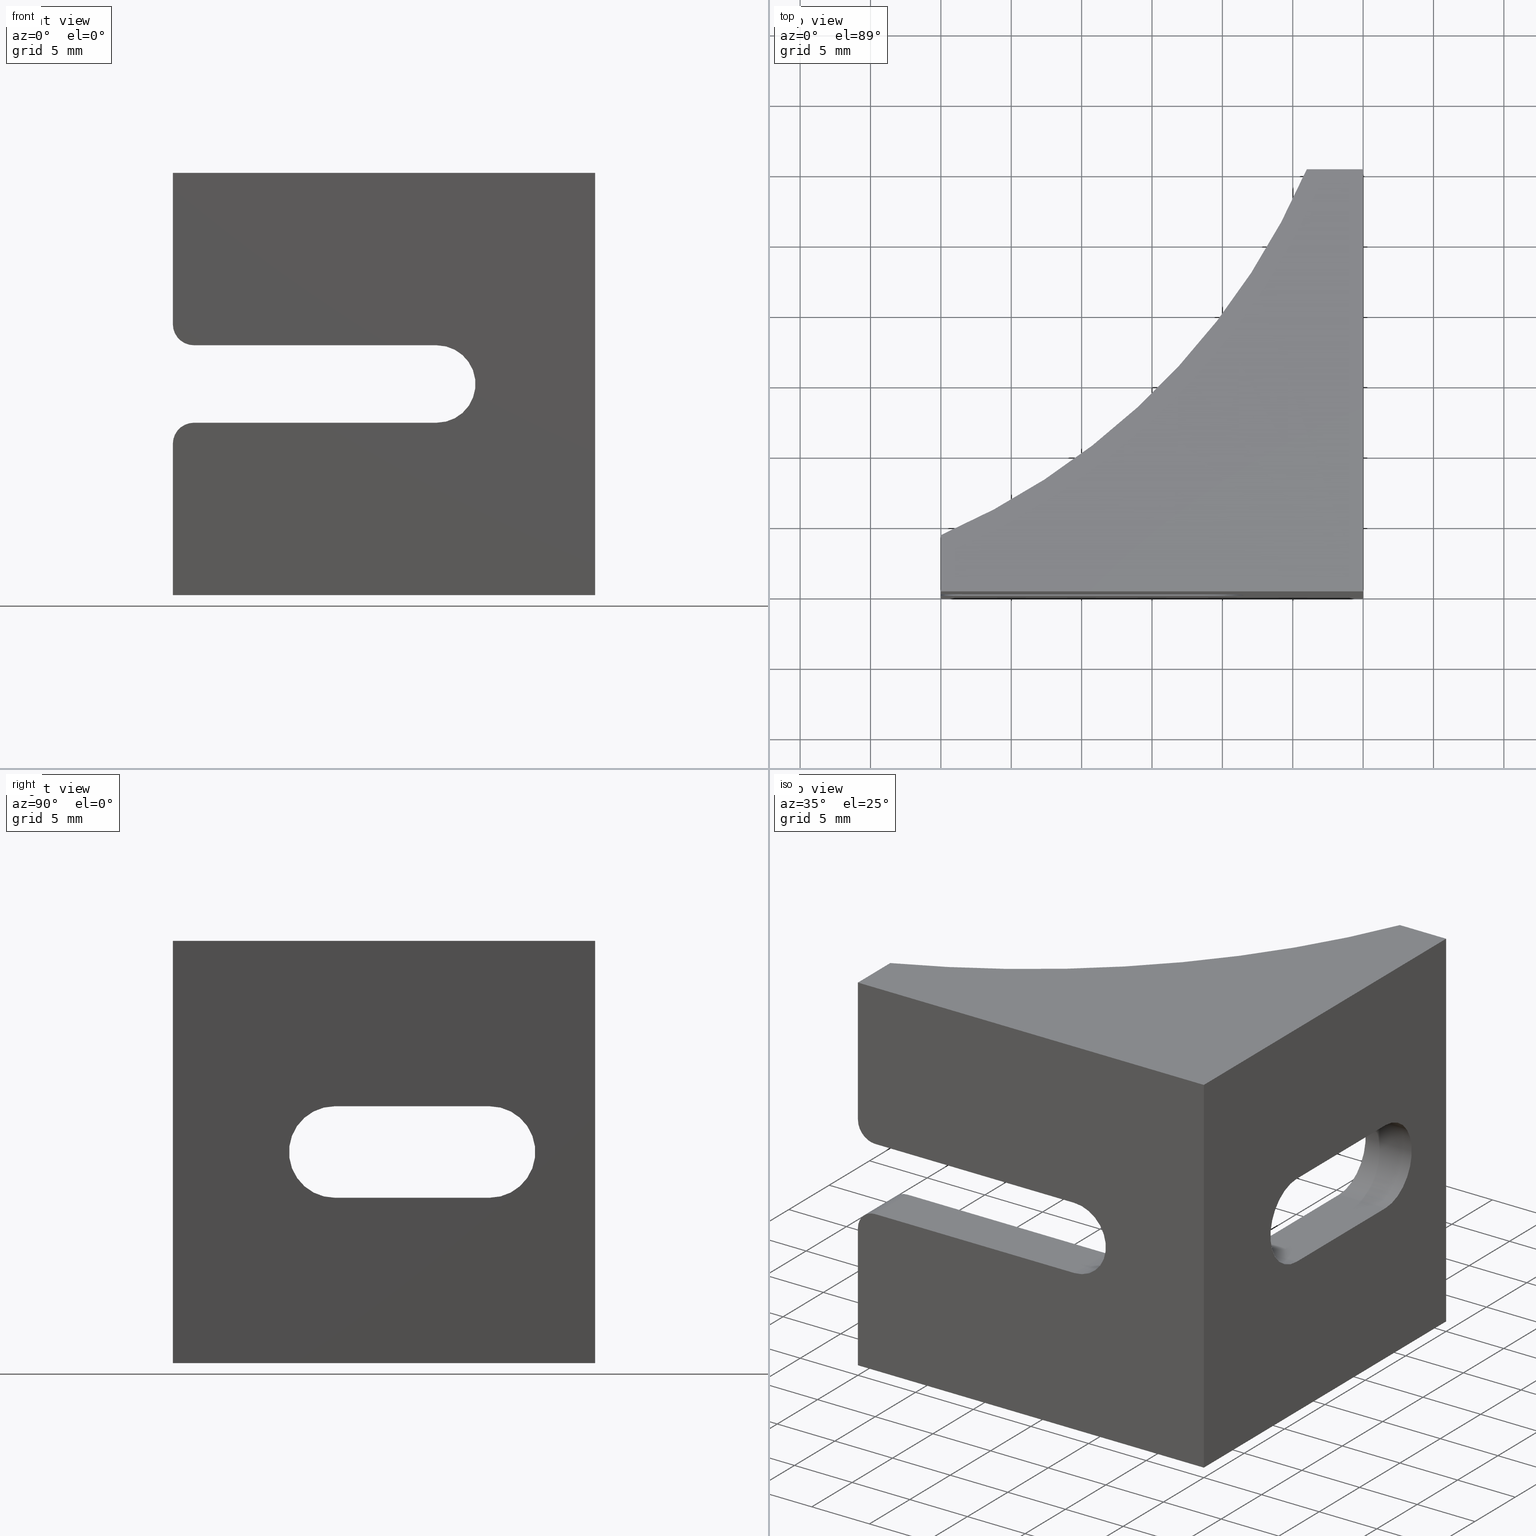
[diagram: canonical four-view strip — front | top / right | iso, engineering-drawing reading convention]
A machine part, canonical four-view strip (front | top / right | iso — engineering-drawing reading convention). The complete STEP part file that produces these views, byte-faithful:
ISO-10303-21;
HEADER;
/* Generated by software containing ST-Developer
 * from STEP Tools, Inc. (www.steptools.com) 
 */

FILE_DESCRIPTION(
/* description */ ('ANGOLARE 30X30X30 2 ASOLE'),
/* implementation_level */ '2;1');

FILE_NAME(
/* name */ 'C:\\Users\\srubbiani.DR\\Desktop\\LAURA\\27.008.00.stp',
/* time_stamp */ '2014-07-31T10:46:24+02:00',
/* author */ ('srubbiani'),
/* organization */ (''),
/* preprocessor_version */ 'ST-DEVELOPER v15.2',
/* originating_system */ 'Autodesk Inventor 2014',
/* authorisation */ '');

FILE_SCHEMA (('AUTOMOTIVE_DESIGN { 1 0 10303 214 3 1 1 }'));
ENDSEC;

DATA;
#10=MECHANICAL_DESIGN_GEOMETRIC_PRESENTATION_REPRESENTATION('',(#13),#699);
#11=SHAPE_REPRESENTATION_RELATIONSHIP('SRR','None',#708,#12);
#12=ADVANCED_BREP_SHAPE_REPRESENTATION($,(#421),#698);
#13=STYLED_ITEM('',(#717),#421);
#14=FACE_BOUND('',#67,.T.);
#15=FACE_BOUND('',#68,.T.);
#16=FACE_BOUND('',#72,.T.);
#17=FACE_BOUND('',#73,.T.);
#18=PLANE('',#426);
#19=PLANE('',#427);
#20=PLANE('',#432);
#21=PLANE('',#433);
#22=PLANE('',#436);
#23=PLANE('',#437);
#24=PLANE('',#441);
#25=PLANE('',#445);
#26=PLANE('',#447);
#27=PLANE('',#449);
#28=PLANE('',#454);
#29=PLANE('',#455);
#30=PLANE('',#456);
#31=PLANE('',#457);
#32=PLANE('',#458);
#33=FACE_OUTER_BOUND('',#53,.T.);
#34=FACE_OUTER_BOUND('',#54,.T.);
#35=FACE_OUTER_BOUND('',#55,.T.);
#36=FACE_OUTER_BOUND('',#56,.T.);
#37=FACE_OUTER_BOUND('',#57,.T.);
#38=FACE_OUTER_BOUND('',#58,.T.);
#39=FACE_OUTER_BOUND('',#59,.T.);
#40=FACE_OUTER_BOUND('',#60,.T.);
#41=FACE_OUTER_BOUND('',#61,.T.);
#42=FACE_OUTER_BOUND('',#62,.T.);
#43=FACE_OUTER_BOUND('',#63,.T.);
#44=FACE_OUTER_BOUND('',#64,.T.);
#45=FACE_OUTER_BOUND('',#65,.T.);
#46=FACE_OUTER_BOUND('',#66,.T.);
#47=FACE_OUTER_BOUND('',#69,.T.);
#48=FACE_OUTER_BOUND('',#70,.T.);
#49=FACE_OUTER_BOUND('',#71,.T.);
#50=FACE_OUTER_BOUND('',#74,.T.);
#51=FACE_OUTER_BOUND('',#75,.T.);
#52=FACE_OUTER_BOUND('',#76,.T.);
#53=EDGE_LOOP('',(#275,#276,#277,#278));
#54=EDGE_LOOP('',(#279,#280,#281,#282,#283));
#55=EDGE_LOOP('',(#284,#285,#286,#287,#288,#289,#290,#291,#292,#293));
#56=EDGE_LOOP('',(#294,#295,#296,#297));
#57=EDGE_LOOP('',(#298,#299,#300,#301,#302));
#58=EDGE_LOOP('',(#303,#304,#305,#306));
#59=EDGE_LOOP('',(#307,#308,#309,#310));
#60=EDGE_LOOP('',(#311,#312,#313,#314));
#61=EDGE_LOOP('',(#315,#316,#317,#318));
#62=EDGE_LOOP('',(#319,#320,#321,#322));
#63=EDGE_LOOP('',(#323,#324,#325,#326));
#64=EDGE_LOOP('',(#327,#328,#329,#330));
#65=EDGE_LOOP('',(#331,#332,#333,#334));
#66=EDGE_LOOP('',(#335,#336,#337,#338));
#67=EDGE_LOOP('',(#339,#340,#341,#342));
#68=EDGE_LOOP('',(#343,#344,#345,#346));
#69=EDGE_LOOP('',(#347,#348,#349,#350));
#70=EDGE_LOOP('',(#351,#352,#353,#354));
#71=EDGE_LOOP('',(#355,#356,#357,#358,#359));
#72=EDGE_LOOP('',(#360,#361,#362,#363));
#73=EDGE_LOOP('',(#364,#365,#366,#367));
#74=EDGE_LOOP('',(#368,#369,#370,#371,#372,#373,#374,#375,#376,#377));
#75=EDGE_LOOP('',(#378,#379,#380,#381,#382,#383,#384,#385));
#76=EDGE_LOOP('',(#386,#387,#388,#389,#390));
#77=LINE('',#583,#121);
#78=LINE('',#586,#122);
#79=LINE('',#589,#123);
#80=LINE('',#591,#124);
#81=LINE('',#593,#125);
#82=LINE('',#594,#126);
#83=LINE('',#597,#127);
#84=LINE('',#601,#128);
#85=LINE('',#605,#129);
#86=LINE('',#607,#130);
#87=LINE('',#609,#131);
#88=LINE('',#610,#132);
#89=LINE('',#615,#133);
#90=LINE('',#616,#134);
#91=LINE('',#619,#135);
#92=LINE('',#621,#136);
#93=LINE('',#622,#137);
#94=LINE('',#625,#138);
#95=LINE('',#626,#139);
#96=LINE('',#630,#140);
#97=LINE('',#632,#141);
#98=LINE('',#636,#142);
#99=LINE('',#638,#143);
#100=LINE('',#640,#144);
#101=LINE('',#641,#145);
#102=LINE('',#647,#146);
#103=LINE('',#650,#147);
#104=LINE('',#652,#148);
#105=LINE('',#653,#149);
#106=LINE('',#660,#150);
#107=LINE('',#661,#151);
#108=LINE('',#666,#152);
#109=LINE('',#668,#153);
#110=LINE('',#670,#154);
#111=LINE('',#673,#155);
#112=LINE('',#678,#156);
#113=LINE('',#681,#157);
#114=LINE('',#683,#158);
#115=LINE('',#684,#159);
#116=LINE('',#687,#160);
#117=LINE('',#689,#161);
#118=LINE('',#690,#162);
#119=LINE('',#692,#163);
#120=LINE('',#694,#164);
#121=VECTOR('',#465,4.00205758755086);
#122=VECTOR('',#468,4.00205758755086);
#123=VECTOR('',#471,8.75);
#124=VECTOR('',#472,2.00000000000001);
#125=VECTOR('',#473,4.00205758755086);
#126=VECTOR('',#474,10.75);
#127=VECTOR('',#477,17.25);
#128=VECTOR('',#480,17.25);
#129=VECTOR('',#483,8.75000000000001);
#130=VECTOR('',#484,26.);
#131=VECTOR('',#485,26.);
#132=VECTOR('',#486,26.);
#133=VECTOR('',#491,4.00205758755086);
#134=VECTOR('',#492,4.00205758755086);
#135=VECTOR('',#495,10.75);
#136=VECTOR('',#496,4.00205758755086);
#137=VECTOR('',#497,1.99999999999999);
#138=VECTOR('',#500,17.25);
#139=VECTOR('',#501,4.00205758755086);
#140=VECTOR('',#506,4.00205758755086);
#141=VECTOR('',#509,17.25);
#142=VECTOR('',#512,11.);
#143=VECTOR('',#513,4.);
#144=VECTOR('',#514,11.);
#145=VECTOR('',#515,4.);
#146=VECTOR('',#522,4.);
#147=VECTOR('',#525,11.);
#148=VECTOR('',#526,11.);
#149=VECTOR('',#527,4.);
#150=VECTOR('',#536,0.00205758755085661);
#151=VECTOR('',#537,25.9979424124491);
#152=VECTOR('',#542,0.00205758755085661);
#153=VECTOR('',#545,25.9979424124491);
#154=VECTOR('',#548,26.);
#155=VECTOR('',#551,2.);
#156=VECTOR('',#558,2.);
#157=VECTOR('',#561,4.00205758755086);
#158=VECTOR('',#562,30.);
#159=VECTOR('',#563,30.);
#160=VECTOR('',#566,30.);
#161=VECTOR('',#567,30.);
#162=VECTOR('',#568,30.);
#163=VECTOR('',#571,30.);
#164=VECTOR('',#574,4.00205758755086);
#165=CIRCLE('',#424,1.5);
#166=CIRCLE('',#425,1.5);
#167=CIRCLE('',#428,2.75);
#168=CIRCLE('',#429,1.5);
#169=CIRCLE('',#431,1.5);
#170=CIRCLE('',#435,2.75);
#171=CIRCLE('',#439,3.25);
#172=CIRCLE('',#440,3.25);
#173=CIRCLE('',#443,3.25);
#174=CIRCLE('',#444,3.25);
#175=CIRCLE('',#446,50.);
#176=CIRCLE('',#448,50.);
#177=CIRCLE('',#451,50.);
#178=CIRCLE('',#453,50.);
#179=VERTEX_POINT('',#579);
#180=VERTEX_POINT('',#580);
#181=VERTEX_POINT('',#582);
#182=VERTEX_POINT('',#584);
#183=VERTEX_POINT('',#588);
#184=VERTEX_POINT('',#590);
#185=VERTEX_POINT('',#592);
#186=VERTEX_POINT('',#596);
#187=VERTEX_POINT('',#598);
#188=VERTEX_POINT('',#600);
#189=VERTEX_POINT('',#602);
#190=VERTEX_POINT('',#604);
#191=VERTEX_POINT('',#606);
#192=VERTEX_POINT('',#608);
#193=VERTEX_POINT('',#612);
#194=VERTEX_POINT('',#613);
#195=VERTEX_POINT('',#618);
#196=VERTEX_POINT('',#620);
#197=VERTEX_POINT('',#624);
#198=VERTEX_POINT('',#628);
#199=VERTEX_POINT('',#634);
#200=VERTEX_POINT('',#635);
#201=VERTEX_POINT('',#637);
#202=VERTEX_POINT('',#639);
#203=VERTEX_POINT('',#643);
#204=VERTEX_POINT('',#645);
#205=VERTEX_POINT('',#649);
#206=VERTEX_POINT('',#651);
#207=VERTEX_POINT('',#658);
#208=VERTEX_POINT('',#659);
#209=VERTEX_POINT('',#664);
#210=VERTEX_POINT('',#665);
#211=VERTEX_POINT('',#672);
#212=VERTEX_POINT('',#676);
#213=VERTEX_POINT('',#680);
#214=VERTEX_POINT('',#682);
#215=VERTEX_POINT('',#686);
#216=VERTEX_POINT('',#688);
#217=EDGE_CURVE('',#179,#180,#165,.T.);
#218=EDGE_CURVE('',#180,#181,#77,.T.);
#219=EDGE_CURVE('',#181,#182,#166,.T.);
#220=EDGE_CURVE('',#182,#179,#78,.T.);
#221=EDGE_CURVE('',#180,#183,#79,.T.);
#222=EDGE_CURVE('',#183,#184,#80,.T.);
#223=EDGE_CURVE('',#185,#184,#81,.T.);
#224=EDGE_CURVE('',#185,#181,#82,.T.);
#225=EDGE_CURVE('',#179,#186,#83,.T.);
#226=EDGE_CURVE('',#186,#187,#167,.T.);
#227=EDGE_CURVE('',#187,#188,#84,.T.);
#228=EDGE_CURVE('',#189,#188,#168,.T.);
#229=EDGE_CURVE('',#190,#189,#85,.T.);
#230=EDGE_CURVE('',#190,#191,#86,.T.);
#231=EDGE_CURVE('',#191,#192,#87,.T.);
#232=EDGE_CURVE('',#183,#192,#88,.T.);
#233=EDGE_CURVE('',#193,#194,#169,.T.);
#234=EDGE_CURVE('',#194,#189,#89,.T.);
#235=EDGE_CURVE('',#188,#193,#90,.T.);
#236=EDGE_CURVE('',#194,#195,#91,.T.);
#237=EDGE_CURVE('',#196,#195,#92,.T.);
#238=EDGE_CURVE('',#196,#190,#93,.T.);
#239=EDGE_CURVE('',#197,#182,#94,.T.);
#240=EDGE_CURVE('',#197,#186,#95,.T.);
#241=EDGE_CURVE('',#198,#197,#170,.T.);
#242=EDGE_CURVE('',#198,#187,#96,.T.);
#243=EDGE_CURVE('',#193,#198,#97,.T.);
#244=EDGE_CURVE('',#199,#200,#98,.T.);
#245=EDGE_CURVE('',#201,#199,#99,.T.);
#246=EDGE_CURVE('',#202,#201,#100,.T.);
#247=EDGE_CURVE('',#202,#200,#101,.T.);
#248=EDGE_CURVE('',#200,#203,#171,.T.);
#249=EDGE_CURVE('',#204,#202,#172,.T.);
#250=EDGE_CURVE('',#204,#203,#102,.T.);
#251=EDGE_CURVE('',#203,#205,#103,.T.);
#252=EDGE_CURVE('',#206,#204,#104,.T.);
#253=EDGE_CURVE('',#206,#205,#105,.T.);
#254=EDGE_CURVE('',#205,#199,#173,.T.);
#255=EDGE_CURVE('',#201,#206,#174,.T.);
#256=EDGE_CURVE('',#207,#208,#106,.T.);
#257=EDGE_CURVE('',#207,#191,#107,.T.);
#258=EDGE_CURVE('',#208,#190,#175,.T.);
#259=EDGE_CURVE('',#209,#210,#108,.T.);
#260=EDGE_CURVE('',#183,#209,#176,.T.);
#261=EDGE_CURVE('',#192,#210,#109,.T.);
#262=EDGE_CURVE('',#210,#207,#110,.T.);
#263=EDGE_CURVE('',#211,#209,#111,.T.);
#264=EDGE_CURVE('',#184,#211,#177,.T.);
#265=EDGE_CURVE('',#212,#196,#178,.T.);
#266=EDGE_CURVE('',#208,#212,#112,.T.);
#267=EDGE_CURVE('',#211,#213,#113,.T.);
#268=EDGE_CURVE('',#213,#214,#114,.T.);
#269=EDGE_CURVE('',#214,#185,#115,.T.);
#270=EDGE_CURVE('',#213,#215,#116,.T.);
#271=EDGE_CURVE('',#216,#215,#117,.T.);
#272=EDGE_CURVE('',#214,#216,#118,.T.);
#273=EDGE_CURVE('',#195,#216,#119,.T.);
#274=EDGE_CURVE('',#215,#212,#120,.T.);
#275=ORIENTED_EDGE('',*,*,#217,.T.);
#276=ORIENTED_EDGE('',*,*,#218,.T.);
#277=ORIENTED_EDGE('',*,*,#219,.T.);
#278=ORIENTED_EDGE('',*,*,#220,.T.);
#279=ORIENTED_EDGE('',*,*,#218,.F.);
#280=ORIENTED_EDGE('',*,*,#221,.T.);
#281=ORIENTED_EDGE('',*,*,#222,.T.);
#282=ORIENTED_EDGE('',*,*,#223,.F.);
#283=ORIENTED_EDGE('',*,*,#224,.T.);
#284=ORIENTED_EDGE('',*,*,#217,.F.);
#285=ORIENTED_EDGE('',*,*,#225,.T.);
#286=ORIENTED_EDGE('',*,*,#226,.T.);
#287=ORIENTED_EDGE('',*,*,#227,.T.);
#288=ORIENTED_EDGE('',*,*,#228,.F.);
#289=ORIENTED_EDGE('',*,*,#229,.F.);
#290=ORIENTED_EDGE('',*,*,#230,.T.);
#291=ORIENTED_EDGE('',*,*,#231,.T.);
#292=ORIENTED_EDGE('',*,*,#232,.F.);
#293=ORIENTED_EDGE('',*,*,#221,.F.);
#294=ORIENTED_EDGE('',*,*,#233,.T.);
#295=ORIENTED_EDGE('',*,*,#234,.T.);
#296=ORIENTED_EDGE('',*,*,#228,.T.);
#297=ORIENTED_EDGE('',*,*,#235,.T.);
#298=ORIENTED_EDGE('',*,*,#234,.F.);
#299=ORIENTED_EDGE('',*,*,#236,.T.);
#300=ORIENTED_EDGE('',*,*,#237,.F.);
#301=ORIENTED_EDGE('',*,*,#238,.T.);
#302=ORIENTED_EDGE('',*,*,#229,.T.);
#303=ORIENTED_EDGE('',*,*,#220,.F.);
#304=ORIENTED_EDGE('',*,*,#239,.F.);
#305=ORIENTED_EDGE('',*,*,#240,.T.);
#306=ORIENTED_EDGE('',*,*,#225,.F.);
#307=ORIENTED_EDGE('',*,*,#226,.F.);
#308=ORIENTED_EDGE('',*,*,#240,.F.);
#309=ORIENTED_EDGE('',*,*,#241,.F.);
#310=ORIENTED_EDGE('',*,*,#242,.T.);
#311=ORIENTED_EDGE('',*,*,#235,.F.);
#312=ORIENTED_EDGE('',*,*,#227,.F.);
#313=ORIENTED_EDGE('',*,*,#242,.F.);
#314=ORIENTED_EDGE('',*,*,#243,.F.);
#315=ORIENTED_EDGE('',*,*,#244,.F.);
#316=ORIENTED_EDGE('',*,*,#245,.F.);
#317=ORIENTED_EDGE('',*,*,#246,.F.);
#318=ORIENTED_EDGE('',*,*,#247,.T.);
#319=ORIENTED_EDGE('',*,*,#248,.F.);
#320=ORIENTED_EDGE('',*,*,#247,.F.);
#321=ORIENTED_EDGE('',*,*,#249,.F.);
#322=ORIENTED_EDGE('',*,*,#250,.T.);
#323=ORIENTED_EDGE('',*,*,#251,.F.);
#324=ORIENTED_EDGE('',*,*,#250,.F.);
#325=ORIENTED_EDGE('',*,*,#252,.F.);
#326=ORIENTED_EDGE('',*,*,#253,.T.);
#327=ORIENTED_EDGE('',*,*,#254,.F.);
#328=ORIENTED_EDGE('',*,*,#253,.F.);
#329=ORIENTED_EDGE('',*,*,#255,.F.);
#330=ORIENTED_EDGE('',*,*,#245,.T.);
#331=ORIENTED_EDGE('',*,*,#256,.F.);
#332=ORIENTED_EDGE('',*,*,#257,.T.);
#333=ORIENTED_EDGE('',*,*,#230,.F.);
#334=ORIENTED_EDGE('',*,*,#258,.F.);
#335=ORIENTED_EDGE('',*,*,#259,.F.);
#336=ORIENTED_EDGE('',*,*,#260,.F.);
#337=ORIENTED_EDGE('',*,*,#232,.T.);
#338=ORIENTED_EDGE('',*,*,#261,.T.);
#339=ORIENTED_EDGE('',*,*,#251,.T.);
#340=ORIENTED_EDGE('',*,*,#254,.T.);
#341=ORIENTED_EDGE('',*,*,#244,.T.);
#342=ORIENTED_EDGE('',*,*,#248,.T.);
#343=ORIENTED_EDGE('',*,*,#262,.F.);
#344=ORIENTED_EDGE('',*,*,#261,.F.);
#345=ORIENTED_EDGE('',*,*,#231,.F.);
#346=ORIENTED_EDGE('',*,*,#257,.F.);
#347=ORIENTED_EDGE('',*,*,#260,.T.);
#348=ORIENTED_EDGE('',*,*,#263,.F.);
#349=ORIENTED_EDGE('',*,*,#264,.F.);
#350=ORIENTED_EDGE('',*,*,#222,.F.);
#351=ORIENTED_EDGE('',*,*,#258,.T.);
#352=ORIENTED_EDGE('',*,*,#238,.F.);
#353=ORIENTED_EDGE('',*,*,#265,.F.);
#354=ORIENTED_EDGE('',*,*,#266,.F.);
#355=ORIENTED_EDGE('',*,*,#264,.T.);
#356=ORIENTED_EDGE('',*,*,#267,.T.);
#357=ORIENTED_EDGE('',*,*,#268,.T.);
#358=ORIENTED_EDGE('',*,*,#269,.T.);
#359=ORIENTED_EDGE('',*,*,#223,.T.);
#360=ORIENTED_EDGE('',*,*,#252,.T.);
#361=ORIENTED_EDGE('',*,*,#249,.T.);
#362=ORIENTED_EDGE('',*,*,#246,.T.);
#363=ORIENTED_EDGE('',*,*,#255,.T.);
#364=ORIENTED_EDGE('',*,*,#268,.F.);
#365=ORIENTED_EDGE('',*,*,#270,.T.);
#366=ORIENTED_EDGE('',*,*,#271,.F.);
#367=ORIENTED_EDGE('',*,*,#272,.F.);
#368=ORIENTED_EDGE('',*,*,#219,.F.);
#369=ORIENTED_EDGE('',*,*,#224,.F.);
#370=ORIENTED_EDGE('',*,*,#269,.F.);
#371=ORIENTED_EDGE('',*,*,#272,.T.);
#372=ORIENTED_EDGE('',*,*,#273,.F.);
#373=ORIENTED_EDGE('',*,*,#236,.F.);
#374=ORIENTED_EDGE('',*,*,#233,.F.);
#375=ORIENTED_EDGE('',*,*,#243,.T.);
#376=ORIENTED_EDGE('',*,*,#241,.T.);
#377=ORIENTED_EDGE('',*,*,#239,.T.);
#378=ORIENTED_EDGE('',*,*,#256,.T.);
#379=ORIENTED_EDGE('',*,*,#266,.T.);
#380=ORIENTED_EDGE('',*,*,#274,.F.);
#381=ORIENTED_EDGE('',*,*,#270,.F.);
#382=ORIENTED_EDGE('',*,*,#267,.F.);
#383=ORIENTED_EDGE('',*,*,#263,.T.);
#384=ORIENTED_EDGE('',*,*,#259,.T.);
#385=ORIENTED_EDGE('',*,*,#262,.T.);
#386=ORIENTED_EDGE('',*,*,#265,.T.);
#387=ORIENTED_EDGE('',*,*,#237,.T.);
#388=ORIENTED_EDGE('',*,*,#273,.T.);
#389=ORIENTED_EDGE('',*,*,#271,.T.);
#390=ORIENTED_EDGE('',*,*,#274,.T.);
#391=CYLINDRICAL_SURFACE('',#423,1.5);
#392=CYLINDRICAL_SURFACE('',#430,1.5);
#393=CYLINDRICAL_SURFACE('',#434,2.75);
#394=CYLINDRICAL_SURFACE('',#438,3.25);
#395=CYLINDRICAL_SURFACE('',#442,3.25);
#396=CYLINDRICAL_SURFACE('',#450,50.);
#397=CYLINDRICAL_SURFACE('',#452,50.);
#398=ADVANCED_FACE('',(#33),#391,.T.);
#399=ADVANCED_FACE('',(#34),#18,.T.);
#400=ADVANCED_FACE('',(#35),#19,.F.);
#401=ADVANCED_FACE('',(#36),#392,.T.);
#402=ADVANCED_FACE('',(#37),#20,.T.);
#403=ADVANCED_FACE('',(#38),#21,.F.);
#404=ADVANCED_FACE('',(#39),#393,.F.);
#405=ADVANCED_FACE('',(#40),#22,.F.);
#406=ADVANCED_FACE('',(#41),#23,.F.);
#407=ADVANCED_FACE('',(#42),#394,.F.);
#408=ADVANCED_FACE('',(#43),#24,.F.);
#409=ADVANCED_FACE('',(#44),#395,.F.);
#410=ADVANCED_FACE('',(#45),#25,.F.);
#411=ADVANCED_FACE('',(#46),#26,.F.);
#412=ADVANCED_FACE('',(#14,#15),#27,.F.);
#413=ADVANCED_FACE('',(#47),#396,.F.);
#414=ADVANCED_FACE('',(#48),#397,.F.);
#415=ADVANCED_FACE('',(#49),#28,.F.);
#416=ADVANCED_FACE('',(#16,#17),#29,.T.);
#417=ADVANCED_FACE('',(#50),#30,.T.);
#418=ADVANCED_FACE('',(#51),#31,.T.);
#419=ADVANCED_FACE('',(#52),#32,.T.);
#420=CLOSED_SHELL('',(#398,#399,#400,#401,#402,#403,#404,#405,#406,#407,
#408,#409,#410,#411,#412,#413,#414,#415,#416,#417,#418,#419));
#421=MANIFOLD_SOLID_BREP('Solido1',#420);
#422=AXIS2_PLACEMENT_3D('placement',#577,#459,#460);
#423=AXIS2_PLACEMENT_3D('',#578,#461,#462);
#424=AXIS2_PLACEMENT_3D('',#581,#463,#464);
#425=AXIS2_PLACEMENT_3D('',#585,#466,#467);
#426=AXIS2_PLACEMENT_3D('',#587,#469,#470);
#427=AXIS2_PLACEMENT_3D('',#595,#475,#476);
#428=AXIS2_PLACEMENT_3D('',#599,#478,#479);
#429=AXIS2_PLACEMENT_3D('',#603,#481,#482);
#430=AXIS2_PLACEMENT_3D('',#611,#487,#488);
#431=AXIS2_PLACEMENT_3D('',#614,#489,#490);
#432=AXIS2_PLACEMENT_3D('',#617,#493,#494);
#433=AXIS2_PLACEMENT_3D('',#623,#498,#499);
#434=AXIS2_PLACEMENT_3D('',#627,#502,#503);
#435=AXIS2_PLACEMENT_3D('',#629,#504,#505);
#436=AXIS2_PLACEMENT_3D('',#631,#507,#508);
#437=AXIS2_PLACEMENT_3D('',#633,#510,#511);
#438=AXIS2_PLACEMENT_3D('',#642,#516,#517);
#439=AXIS2_PLACEMENT_3D('',#644,#518,#519);
#440=AXIS2_PLACEMENT_3D('',#646,#520,#521);
#441=AXIS2_PLACEMENT_3D('',#648,#523,#524);
#442=AXIS2_PLACEMENT_3D('',#654,#528,#529);
#443=AXIS2_PLACEMENT_3D('',#655,#530,#531);
#444=AXIS2_PLACEMENT_3D('',#656,#532,#533);
#445=AXIS2_PLACEMENT_3D('',#657,#534,#535);
#446=AXIS2_PLACEMENT_3D('',#662,#538,#539);
#447=AXIS2_PLACEMENT_3D('',#663,#540,#541);
#448=AXIS2_PLACEMENT_3D('',#667,#543,#544);
#449=AXIS2_PLACEMENT_3D('',#669,#546,#547);
#450=AXIS2_PLACEMENT_3D('',#671,#549,#550);
#451=AXIS2_PLACEMENT_3D('',#674,#552,#553);
#452=AXIS2_PLACEMENT_3D('',#675,#554,#555);
#453=AXIS2_PLACEMENT_3D('',#677,#556,#557);
#454=AXIS2_PLACEMENT_3D('',#679,#559,#560);
#455=AXIS2_PLACEMENT_3D('',#685,#564,#565);
#456=AXIS2_PLACEMENT_3D('',#691,#569,#570);
#457=AXIS2_PLACEMENT_3D('',#693,#572,#573);
#458=AXIS2_PLACEMENT_3D('',#695,#575,#576);
#459=DIRECTION('axis',(0.,0.,1.));
#460=DIRECTION('refdir',(1.,0.,0.));
#461=DIRECTION('center_axis',(0.,1.,0.));
#462=DIRECTION('ref_axis',(-0.707106781186547,0.,0.707106781186547));
#463=DIRECTION('center_axis',(0.,-1.,0.));
#464=DIRECTION('ref_axis',(-0.707106781186547,0.,0.707106781186547));
#465=DIRECTION('',(0.,-1.,0.));
#466=DIRECTION('center_axis',(0.,1.,0.));
#467=DIRECTION('ref_axis',(-0.707106781186547,0.,0.707106781186547));
#468=DIRECTION('',(0.,1.,0.));
#469=DIRECTION('center_axis',(-1.,0.,0.));
#470=DIRECTION('ref_axis',(0.,-1.,0.));
#471=DIRECTION('',(0.,0.,-1.));
#472=DIRECTION('',(0.,0.,-1.));
#473=DIRECTION('',(0.,1.,0.));
#474=DIRECTION('',(0.,0.,1.));
#475=DIRECTION('center_axis',(0.,-1.,0.));
#476=DIRECTION('ref_axis',(0.,0.,-1.));
#477=DIRECTION('',(1.,0.,0.));
#478=DIRECTION('center_axis',(0.,-1.,0.));
#479=DIRECTION('ref_axis',(0.,0.,-1.));
#480=DIRECTION('',(-1.,0.,0.));
#481=DIRECTION('center_axis',(0.,-1.,0.));
#482=DIRECTION('ref_axis',(-0.707106781186547,0.,-0.707106781186547));
#483=DIRECTION('',(0.,0.,-1.));
#484=DIRECTION('',(1.,0.,0.));
#485=DIRECTION('',(0.,0.,-1.));
#486=DIRECTION('',(1.,0.,0.));
#487=DIRECTION('center_axis',(0.,-1.,0.));
#488=DIRECTION('ref_axis',(-0.707106781186547,0.,-0.707106781186547));
#489=DIRECTION('center_axis',(0.,1.,0.));
#490=DIRECTION('ref_axis',(-0.707106781186547,0.,-0.707106781186547));
#491=DIRECTION('',(0.,1.,0.));
#492=DIRECTION('',(0.,-1.,0.));
#493=DIRECTION('center_axis',(-1.,0.,0.));
#494=DIRECTION('ref_axis',(0.,-1.,0.));
#495=DIRECTION('',(0.,0.,1.));
#496=DIRECTION('',(0.,-1.,0.));
#497=DIRECTION('',(0.,0.,-1.));
#498=DIRECTION('center_axis',(0.,0.,-1.));
#499=DIRECTION('ref_axis',(-1.,0.,0.));
#500=DIRECTION('',(-1.,0.,0.));
#501=DIRECTION('',(0.,1.,0.));
#502=DIRECTION('center_axis',(0.,1.,0.));
#503=DIRECTION('ref_axis',(0.,0.,-1.));
#504=DIRECTION('center_axis',(0.,1.,0.));
#505=DIRECTION('ref_axis',(0.,0.,-1.));
#506=DIRECTION('',(0.,1.,0.));
#507=DIRECTION('center_axis',(0.,0.,1.));
#508=DIRECTION('ref_axis',(1.,0.,0.));
#509=DIRECTION('',(1.,0.,0.));
#510=DIRECTION('center_axis',(0.,2.01858731750028E-016,1.));
#511=DIRECTION('ref_axis',(0.,1.,-3.5527136788005E-016));
#512=DIRECTION('',(0.,-1.,2.01858731750028E-016));
#513=DIRECTION('',(-1.,0.,0.));
#514=DIRECTION('',(0.,1.,-2.01858731750028E-016));
#515=DIRECTION('',(-1.,0.,0.));
#516=DIRECTION('center_axis',(-1.,0.,0.));
#517=DIRECTION('ref_axis',(0.,0.,1.));
#518=DIRECTION('center_axis',(1.,0.,0.));
#519=DIRECTION('ref_axis',(0.,0.,1.));
#520=DIRECTION('center_axis',(-1.,0.,0.));
#521=DIRECTION('ref_axis',(0.,0.,1.));
#522=DIRECTION('',(-1.,0.,0.));
#523=DIRECTION('center_axis',(0.,0.,-1.));
#524=DIRECTION('ref_axis',(0.,-1.,0.));
#525=DIRECTION('',(0.,1.,0.));
#526=DIRECTION('',(0.,-1.,0.));
#527=DIRECTION('',(-1.,0.,0.));
#528=DIRECTION('center_axis',(-1.,0.,0.));
#529=DIRECTION('ref_axis',(0.,0.,-1.));
#530=DIRECTION('center_axis',(1.,0.,0.));
#531=DIRECTION('ref_axis',(0.,0.,-1.));
#532=DIRECTION('center_axis',(-1.,0.,0.));
#533=DIRECTION('ref_axis',(0.,0.,-1.));
#534=DIRECTION('center_axis',(0.,3.41607084500048E-016,1.));
#535=DIRECTION('ref_axis',(0.,-1.,3.5527136788005E-016));
#536=DIRECTION('',(-1.,0.,0.));
#537=DIRECTION('',(0.,-1.,3.41607084500048E-016));
#538=DIRECTION('center_axis',(0.,-3.41607084500048E-016,-1.));
#539=DIRECTION('ref_axis',(-1.,0.,0.));
#540=DIRECTION('center_axis',(0.,-4.2700885562506E-016,-1.));
#541=DIRECTION('ref_axis',(0.,1.,-4.44089209850063E-016));
#542=DIRECTION('',(1.,0.,0.));
#543=DIRECTION('center_axis',(0.,4.2700885562506E-016,1.));
#544=DIRECTION('ref_axis',(-1.,0.,0.));
#545=DIRECTION('',(0.,1.,-4.2700885562506E-016));
#546=DIRECTION('center_axis',(1.,0.,0.));
#547=DIRECTION('ref_axis',(0.,0.,-1.));
#548=DIRECTION('',(0.,0.,1.));
#549=DIRECTION('center_axis',(0.,0.,-1.));
#550=DIRECTION('ref_axis',(-1.,0.,0.));
#551=DIRECTION('',(0.,0.,1.));
#552=DIRECTION('center_axis',(0.,0.,1.));
#553=DIRECTION('ref_axis',(-1.,0.,0.));
#554=DIRECTION('center_axis',(0.,0.,-1.));
#555=DIRECTION('ref_axis',(-1.,0.,0.));
#556=DIRECTION('center_axis',(0.,0.,-1.));
#557=DIRECTION('ref_axis',(-1.,0.,0.));
#558=DIRECTION('',(0.,0.,1.));
#559=DIRECTION('center_axis',(0.,0.,1.));
#560=DIRECTION('ref_axis',(1.,0.,0.));
#561=DIRECTION('',(1.,0.,0.));
#562=DIRECTION('',(0.,-1.,0.));
#563=DIRECTION('',(-1.,0.,0.));
#564=DIRECTION('center_axis',(1.,0.,0.));
#565=DIRECTION('ref_axis',(0.,1.,0.));
#566=DIRECTION('',(0.,0.,1.));
#567=DIRECTION('',(0.,1.,0.));
#568=DIRECTION('',(0.,0.,1.));
#569=DIRECTION('center_axis',(0.,-1.,0.));
#570=DIRECTION('ref_axis',(1.,0.,0.));
#571=DIRECTION('',(1.,0.,0.));
#572=DIRECTION('center_axis',(0.,1.,0.));
#573=DIRECTION('ref_axis',(-1.,0.,0.));
#574=DIRECTION('',(-1.,0.,0.));
#575=DIRECTION('center_axis',(0.,0.,1.));
#576=DIRECTION('ref_axis',(1.,0.,0.));
#577=CARTESIAN_POINT('',(0.,0.,0.));
#578=CARTESIAN_POINT('Origin',(-13.5,0.,10.75));
#579=CARTESIAN_POINT('',(-13.5,-10.9979424124491,12.25));
#580=CARTESIAN_POINT('',(-15.,-10.9979424124491,10.75));
#581=CARTESIAN_POINT('Origin',(-13.5,-10.9979424124491,10.75));
#582=CARTESIAN_POINT('',(-15.,-15.,10.75));
#583=CARTESIAN_POINT('',(-15.,0.,10.75));
#584=CARTESIAN_POINT('',(-13.5,-15.,12.25));
#585=CARTESIAN_POINT('Origin',(-13.5,-15.,10.75));
#586=CARTESIAN_POINT('',(-13.5,0.,12.25));
#587=CARTESIAN_POINT('Origin',(-15.,15.,0.));
#588=CARTESIAN_POINT('',(-15.,-10.9979424124491,2.00000000000001));
#589=CARTESIAN_POINT('',(-15.,-10.9979424124491,30.));
#590=CARTESIAN_POINT('',(-15.,-10.9979424124491,0.));
#591=CARTESIAN_POINT('',(-15.,-10.9979424124491,30.));
#592=CARTESIAN_POINT('',(-15.,-15.,0.));
#593=CARTESIAN_POINT('',(-15.,-15.,0.));
#594=CARTESIAN_POINT('',(-15.,-15.,0.));
#595=CARTESIAN_POINT('Origin',(-15.,-10.9979424124491,28.));
#596=CARTESIAN_POINT('',(3.75,-10.9979424124491,12.25));
#597=CARTESIAN_POINT('',(-5.625,-10.9979424124491,12.25));
#598=CARTESIAN_POINT('',(3.75,-10.9979424124491,17.75));
#599=CARTESIAN_POINT('Origin',(3.75,-10.9979424124491,15.));
#600=CARTESIAN_POINT('',(-13.5,-10.9979424124491,17.75));
#601=CARTESIAN_POINT('',(-15.,-10.9979424124491,17.75));
#602=CARTESIAN_POINT('',(-15.,-10.9979424124491,19.25));
#603=CARTESIAN_POINT('Origin',(-13.5,-10.9979424124491,19.25));
#604=CARTESIAN_POINT('',(-15.,-10.9979424124491,28.));
#605=CARTESIAN_POINT('',(-15.,-10.9979424124491,30.));
#606=CARTESIAN_POINT('',(11.,-10.9979424124491,28.));
#607=CARTESIAN_POINT('',(-15.,-10.9979424124491,28.));
#608=CARTESIAN_POINT('',(11.,-10.9979424124491,2.00000000000001));
#609=CARTESIAN_POINT('',(11.,-10.9979424124491,2.00000000000001));
#610=CARTESIAN_POINT('',(-15.,-10.9979424124491,2.00000000000001));
#611=CARTESIAN_POINT('Origin',(-13.5,0.,19.25));
#612=CARTESIAN_POINT('',(-13.5,-15.,17.75));
#613=CARTESIAN_POINT('',(-15.,-15.,19.25));
#614=CARTESIAN_POINT('Origin',(-13.5,-15.,19.25));
#615=CARTESIAN_POINT('',(-15.,0.,19.25));
#616=CARTESIAN_POINT('',(-13.5,0.,17.75));
#617=CARTESIAN_POINT('Origin',(-15.,15.,0.));
#618=CARTESIAN_POINT('',(-15.,-15.,30.));
#619=CARTESIAN_POINT('',(-15.,-15.,0.));
#620=CARTESIAN_POINT('',(-15.,-10.9979424124491,30.));
#621=CARTESIAN_POINT('',(-15.,-15.,30.));
#622=CARTESIAN_POINT('',(-15.,-10.9979424124491,30.));
#623=CARTESIAN_POINT('Origin',(3.75,-15.,12.25));
#624=CARTESIAN_POINT('',(3.75,-15.,12.25));
#625=CARTESIAN_POINT('',(-5.625,-15.,12.25));
#626=CARTESIAN_POINT('',(3.75,-15.,12.25));
#627=CARTESIAN_POINT('Origin',(3.75,-15.,15.));
#628=CARTESIAN_POINT('',(3.75,-15.,17.75));
#629=CARTESIAN_POINT('Origin',(3.75,-15.,15.));
#630=CARTESIAN_POINT('',(3.75,-15.,17.75));
#631=CARTESIAN_POINT('Origin',(-15.,-15.,17.75));
#632=CARTESIAN_POINT('',(-15.,-15.,17.75));
#633=CARTESIAN_POINT('Origin',(15.,-3.5,18.25));
#634=CARTESIAN_POINT('',(11.,7.5,18.25));
#635=CARTESIAN_POINT('',(11.,-3.5,18.25));
#636=CARTESIAN_POINT('',(11.,-0.74897120622457,18.25));
#637=CARTESIAN_POINT('',(15.,7.5,18.25));
#638=CARTESIAN_POINT('',(15.,7.5,18.25));
#639=CARTESIAN_POINT('',(15.,-3.5,18.25));
#640=CARTESIAN_POINT('',(15.,-9.25,18.25));
#641=CARTESIAN_POINT('',(15.,-3.5,18.25));
#642=CARTESIAN_POINT('Origin',(15.,-3.5,15.));
#643=CARTESIAN_POINT('',(11.,-3.5,11.75));
#644=CARTESIAN_POINT('Origin',(11.,-3.5,15.));
#645=CARTESIAN_POINT('',(15.,-3.5,11.75));
#646=CARTESIAN_POINT('Origin',(15.,-3.5,15.));
#647=CARTESIAN_POINT('',(15.,-3.5,11.75));
#648=CARTESIAN_POINT('Origin',(15.,7.5,11.75));
#649=CARTESIAN_POINT('',(11.,7.5,11.75));
#650=CARTESIAN_POINT('',(11.,4.75102879377543,11.75));
#651=CARTESIAN_POINT('',(15.,7.5,11.75));
#652=CARTESIAN_POINT('',(15.,-3.75,11.75));
#653=CARTESIAN_POINT('',(15.,7.5,11.75));
#654=CARTESIAN_POINT('Origin',(15.,7.5,15.));
#655=CARTESIAN_POINT('Origin',(11.,7.5,15.));
#656=CARTESIAN_POINT('Origin',(15.,7.5,15.));
#657=CARTESIAN_POINT('Origin',(-15.,15.0020575875509,28.));
#658=CARTESIAN_POINT('',(11.,15.,28.));
#659=CARTESIAN_POINT('',(10.9979424124491,15.,28.));
#660=CARTESIAN_POINT('',(0.,15.,28.));
#661=CARTESIAN_POINT('',(11.,-10.9979424124491,28.));
#662=CARTESIAN_POINT('Origin',(-34.88,34.88,28.));
#663=CARTESIAN_POINT('Origin',(-15.,-10.9979424124491,2.00000000000001));
#664=CARTESIAN_POINT('',(10.9979424124491,15.,2.));
#665=CARTESIAN_POINT('',(11.,15.,2.));
#666=CARTESIAN_POINT('',(0.,15.,2.));
#667=CARTESIAN_POINT('Origin',(-34.88,34.88,2.00000000000001));
#668=CARTESIAN_POINT('',(11.,15.0020575875509,2.));
#669=CARTESIAN_POINT('Origin',(11.,2.00205758755086,15.));
#670=CARTESIAN_POINT('',(11.,15.,7.5));
#671=CARTESIAN_POINT('Origin',(-34.88,34.88,30.));
#672=CARTESIAN_POINT('',(10.9979424124491,15.,0.));
#673=CARTESIAN_POINT('',(10.9979424124491,15.,30.));
#674=CARTESIAN_POINT('Origin',(-34.88,34.88,0.));
#675=CARTESIAN_POINT('Origin',(-34.88,34.88,30.));
#676=CARTESIAN_POINT('',(10.9979424124491,15.,30.));
#677=CARTESIAN_POINT('Origin',(-34.88,34.88,30.));
#678=CARTESIAN_POINT('',(10.9979424124491,15.,30.));
#679=CARTESIAN_POINT('Origin',(0.,0.,0.));
#680=CARTESIAN_POINT('',(15.,15.,0.));
#681=CARTESIAN_POINT('',(-15.,15.,0.));
#682=CARTESIAN_POINT('',(15.,-15.,0.));
#683=CARTESIAN_POINT('',(15.,15.,0.));
#684=CARTESIAN_POINT('',(15.,-15.,0.));
#685=CARTESIAN_POINT('Origin',(15.,-15.,0.));
#686=CARTESIAN_POINT('',(15.,15.,30.));
#687=CARTESIAN_POINT('',(15.,15.,0.));
#688=CARTESIAN_POINT('',(15.,-15.,30.));
#689=CARTESIAN_POINT('',(15.,15.,30.));
#690=CARTESIAN_POINT('',(15.,-15.,0.));
#691=CARTESIAN_POINT('Origin',(-15.,-15.,0.));
#692=CARTESIAN_POINT('',(15.,-15.,30.));
#693=CARTESIAN_POINT('Origin',(15.,15.,0.));
#694=CARTESIAN_POINT('',(-15.,15.,30.));
#695=CARTESIAN_POINT('Origin',(0.,0.,30.));
#696=UNCERTAINTY_MEASURE_WITH_UNIT(LENGTH_MEASURE(0.01),#700,
'DISTANCE_ACCURACY_VALUE',
'Maximum model space distance between geometric entities at asserted c
onnectivities');
#697=UNCERTAINTY_MEASURE_WITH_UNIT(LENGTH_MEASURE(1.E-006),#700,
'DISTANCE_ACCURACY_VALUE',
'Maximum model space distance between geometric entities at asserted c
onnectivities');
#698=(
GEOMETRIC_REPRESENTATION_CONTEXT(3)
GLOBAL_UNCERTAINTY_ASSIGNED_CONTEXT((#696))
GLOBAL_UNIT_ASSIGNED_CONTEXT((#700,#703,#701))
REPRESENTATION_CONTEXT('','3D')
);
#699=(
GEOMETRIC_REPRESENTATION_CONTEXT(3)
GLOBAL_UNCERTAINTY_ASSIGNED_CONTEXT((#697))
GLOBAL_UNIT_ASSIGNED_CONTEXT((#700,#703,#701))
REPRESENTATION_CONTEXT('','3D')
);
#700=(
LENGTH_UNIT()
NAMED_UNIT(*)
SI_UNIT(.MILLI.,.METRE.)
);
#701=(
NAMED_UNIT(*)
SI_UNIT($,.STERADIAN.)
SOLID_ANGLE_UNIT()
);
#702=DIMENSIONAL_EXPONENTS(0.,0.,0.,0.,0.,0.,0.);
#703=(
CONVERSION_BASED_UNIT('degree',#705)
NAMED_UNIT(#702)
PLANE_ANGLE_UNIT()
);
#704=(
NAMED_UNIT(*)
PLANE_ANGLE_UNIT()
SI_UNIT($,.RADIAN.)
);
#705=PLANE_ANGLE_MEASURE_WITH_UNIT(PLANE_ANGLE_MEASURE(0.01745329252),#704);
#706=SHAPE_DEFINITION_REPRESENTATION(#707,#708);
#707=PRODUCT_DEFINITION_SHAPE('',$,#710);
#708=SHAPE_REPRESENTATION('',(#422),#698);
#709=PRODUCT_DEFINITION_CONTEXT('part definition',#714,'design');
#710=PRODUCT_DEFINITION('27.008.00','27.008.00',#711,#709);
#711=PRODUCT_DEFINITION_FORMATION('',$,#716);
#712=PRODUCT_RELATED_PRODUCT_CATEGORY('27.008.00','27.008.00',(#716));
#713=APPLICATION_PROTOCOL_DEFINITION('international standard',
'automotive_design',2009,#714);
#714=APPLICATION_CONTEXT(
'Core Data for Automotive Mechanical Design Process');
#715=PRODUCT_CONTEXT('part definition',#714,'mechanical');
#716=PRODUCT('27.008.00','27.008.00',$,(#715));
#717=PRESENTATION_STYLE_ASSIGNMENT((#718));
#718=SURFACE_STYLE_USAGE(.BOTH.,#719);
#719=SURFACE_SIDE_STYLE($,(#720));
#720=SURFACE_STYLE_FILL_AREA(#721);
#721=FILL_AREA_STYLE($,(#722));
#722=FILL_AREA_STYLE_COLOUR($,#723);
#723=COLOUR_RGB('',1.,1.,1.);
ENDSEC;
END-ISO-10303-21;
